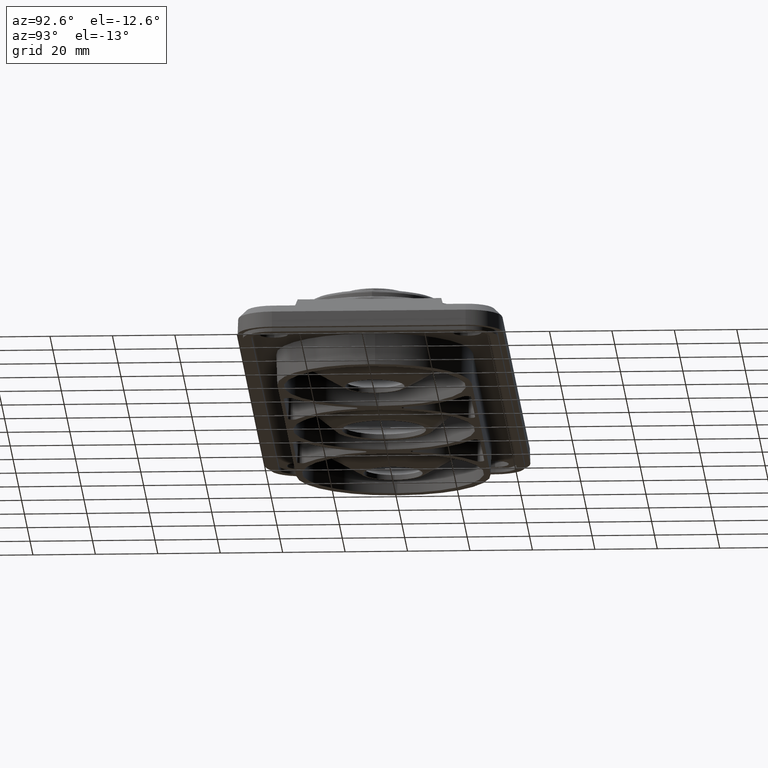
[diagram: clean part render]
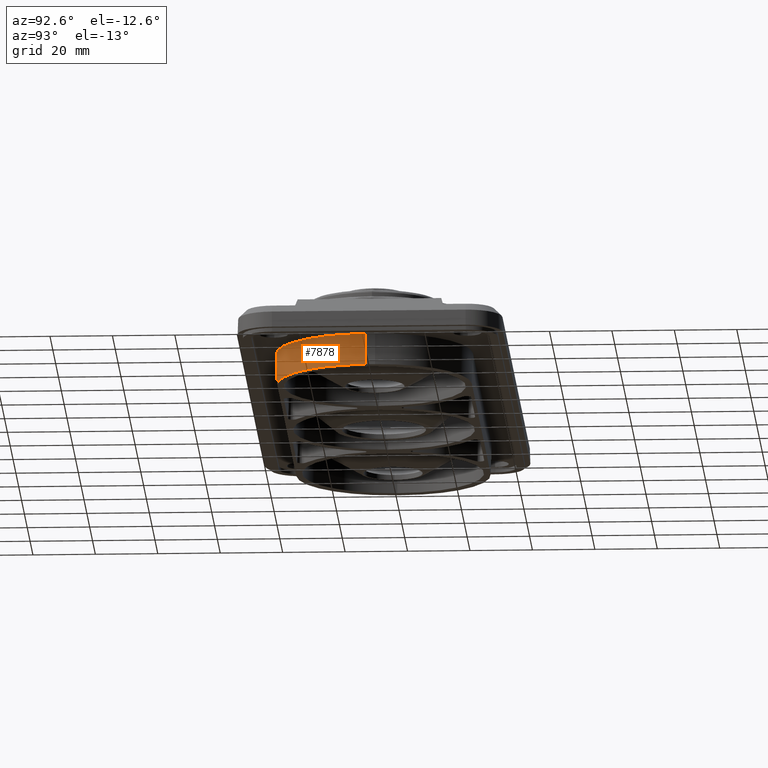
[diagram: same view with one face highlighted and labeled with its STEP entity id]
A machine part, auxiliary view. The second image highlights one B-rep face of the part: STEP entity #7878.
In plain terms, the highlighted conical surface has half-angle 2 deg.
Its self-contained STEP definition (entity closure, byte-faithful):
#374 = DIRECTION ( 'NONE',  ( -0.0000000000000000000, -0.03489949670250140600, 0.9993908270190956500 ) ) ;
#845 = DIRECTION ( 'NONE',  ( 0.0000000000000000000, -1.000000000000000000, 0.0000000000000000000 ) ) ;
#1038 = LINE ( 'NONE', #2132, #5632 ) ;
#1251 = CARTESIAN_POINT ( 'NONE',  ( 189.0381961790797600, 258.3491220038597500, 0.0000000000000000000 ) ) ;
#1608 = ORIENTED_EDGE ( 'NONE', *, *, #3855, .T. ) ;
#1815 = FACE_OUTER_BOUND ( 'NONE', #8562, .T. ) ;
#1916 = DIRECTION ( 'NONE',  ( -0.0000000000000000000, 2.567906592516314700E-032, -1.000000000000000000 ) ) ;
#1955 = DIRECTION ( 'NONE',  ( 0.0000000000000000000, -1.000000000000000000, -2.567906592516314700E-032 ) ) ;
#2132 = CARTESIAN_POINT ( 'NONE',  ( 219.0381961790797900, 258.3491220038597500, 0.0000000000000000000 ) ) ;
#2348 = CARTESIAN_POINT ( 'NONE',  ( 219.0381961790797600, 258.3491220038597500, -2.420163852105878400E-016 ) ) ;
#2539 = AXIS2_PLACEMENT_3D ( 'NONE', #1251, #1916, #1955 ) ;
#2671 = VERTEX_POINT ( 'NONE', #6685 ) ;
#2888 = CARTESIAN_POINT ( 'NONE',  ( 189.0381961790797600, 258.3491220038597500, 7.726848186843068600E-015 ) ) ;
#3267 = VECTOR ( 'NONE', #374, 1000.000000000000100 ) ;
#3335 = EDGE_CURVE ( 'NONE', #2671, #6939, #7304, .T. ) ;
#3372 = EDGE_CURVE ( 'NONE', #4688, #5856, #1038, .T. ) ;
#3595 = DIRECTION ( 'NONE',  ( 0.03489949670250096200, -4.273814540708578600E-018, 0.9993908270190956500 ) ) ;
#3855 = EDGE_CURVE ( 'NONE', #5856, #6939, #5269, .T. ) ;
#4225 = ORIENTED_EDGE ( 'NONE', *, *, #3335, .F. ) ;
#4467 = CARTESIAN_POINT ( 'NONE',  ( 189.0381961790797900, 228.3491220038597500, -7.703719777548939900E-031 ) ) ;
#4688 = VERTEX_POINT ( 'NONE', #5478 ) ;
#5102 = DIRECTION ( 'NONE',  ( 0.0000000000000000000, -2.567906592516314700E-032, 1.000000000000000000 ) ) ;
#5269 = CIRCLE ( 'NONE', #2539, 30.00000000000000000 ) ;
#5400 = EDGE_CURVE ( 'NONE', #2671, #4688, #7047, .T. ) ;
#5432 = AXIS2_PLACEMENT_3D ( 'NONE', #8960, #6012, #845 ) ;
#5478 = CARTESIAN_POINT ( 'NONE',  ( 218.6889884841622800, 258.3491220038597500, -10.00000000000000500 ) ) ;
#5632 = VECTOR ( 'NONE', #3595, 1000.000000000000100 ) ;
#5856 = VERTEX_POINT ( 'NONE', #2348 ) ;
#6012 = DIRECTION ( 'NONE',  ( 0.0000000000000000000, -2.567906592516314700E-032, 1.000000000000000000 ) ) ;
#6611 = AXIS2_PLACEMENT_3D ( 'NONE', #2888, #5102, #8169 ) ;
#6685 = CARTESIAN_POINT ( 'NONE',  ( 189.0381961790798200, 228.6983296987772000, -10.00000000000000400 ) ) ;
#6939 = VERTEX_POINT ( 'NONE', #4467 ) ;
#6950 = ORIENTED_EDGE ( 'NONE', *, *, #3372, .T. ) ;
#7047 = CIRCLE ( 'NONE', #5432, 29.65079230508252600 ) ;
#7304 = LINE ( 'NONE', #8891, #3267 ) ;
#7878 = ADVANCED_FACE ( 'NONE', ( #1815 ), #8346, .T. ) ;
#8169 = DIRECTION ( 'NONE',  ( 0.0000000000000000000, -1.000000000000000000, -5.135813185032629300E-032 ) ) ;
#8346 = CONICAL_SURFACE ( 'NONE', #6611, 30.00000000000000000, 0.03490658503988620200 ) ;
#8562 = EDGE_LOOP ( 'NONE', ( #1608, #4225, #8664, #6950 ) ) ;
#8664 = ORIENTED_EDGE ( 'NONE', *, *, #5400, .T. ) ;
#8891 = CARTESIAN_POINT ( 'NONE',  ( 189.0381961790798500, 228.3491220038597500, -5.680710694325501500E-016 ) ) ;
#8960 = CARTESIAN_POINT ( 'NONE',  ( 189.0381961790797600, 258.3491220038597500, -10.00000000000000900 ) ) ;